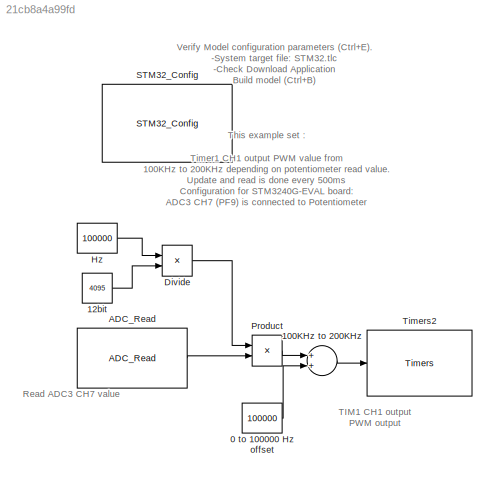
MODEL slx_21cb8a4a99fd
KIND model
CONFIG AbsTol = auto
CONFIG EnableMultiTasking = on
CONFIG FixedStep = 0.5
CONFIG MaxStep = auto
CONFIG MinStep = auto
CONFIG RelTol = 1e-3
CONFIG SampleTimeConstraint = Unconstrained
CONFIG Solver = FixedStepDiscrete
CONFIG SolverName = FixedStepDiscrete
CONFIG StartTime = 0.0
CONFIG StopTime = 10.0
BLOCK [Constant] 0 to 100000 Hz offset
  Value = 100000
BLOCK [Sum] 100KHz to 200KHz
  InputSameDT = off
  OutDataTypeStr = Inherit: Inherit via internal rule
  Ports = [2, 1]
  SaturateOnIntegerOverflow = off
BLOCK [Constant] 12bit
  OutDataTypeStr = single
  Value = 4095
BLOCK [Reference] ADC_Read  REF=ADC_Lib/ADC_Read
  Ports = [0, 1]
  SourceBlock = ADC_Lib/ADC_Read
  SourceProductName = Target Support Package - STM32 Adapter
  SourceType = ADC_Read
BLOCK [Product] Divide
  InputSameDT = off
  Inputs = */
  OutDataTypeStr = Inherit: Inherit via internal rule
  Ports = [2, 1]
  RndMeth = Floor
  SaturateOnIntegerOverflow = off
BLOCK [Constant] Hz
  OutDataTypeStr = single
  Value = 100000
BLOCK [Product] Product
  InputSameDT = off
  OutDataTypeStr = Inherit: Inherit via internal rule
  Ports = [2, 1]
  SaturateOnIntegerOverflow = off
BLOCK [Reference] STM32_Config  REF=STM32_Config_Lib/STM32_Config
  Ports = []
  Priority = 0
  SourceBlock = STM32_Config_Lib/STM32_Config
  SourceProductName = Target Support Package - STM32 Adapter
  SourceType = STM32_Config
BLOCK [Reference] Timers2  REF=TIMERS_Lib/Timers
  Ports = [1]
  SourceBlock = TIMERS_Lib/Timers
  SourceProductName = Target Support Package - STM32 Adapter
  SourceType = Timers
ANNOTATION (root): This example set : Timer1 CH1 output PWM value from 100KHz to 200KHz depending on potentiometer read value. Update and read is done every 500ms Configuration for STM3240G-EVAL board: ADC3 CH7 (PF9) is connected to Potentiometer TIM1 CH1 output (PE9) with duty cycle at 50%
ANNOTATION (root): Read ADC3 CH7 value
ANNOTATION (root): TIM1 CH1 output PWM output
ANNOTATION (root): Verify Model configuration parameters (Ctrl+E). -System target file: STM32.tlc -Check Download Application Build model (Ctrl+B)
LINE 0 to 100000 Hz offset:1 -> 100KHz to 200KHz:2
LINE 100KHz to 200KHz:1 -> Timers2:1
LINE 12bit:1 -> Divide:2
LINE ADC_Read:1 -> Product:2
LINE Divide:1 -> Product:1
LINE Hz:1 -> Divide:1
LINE Product:1 -> 100KHz to 200KHz:1
